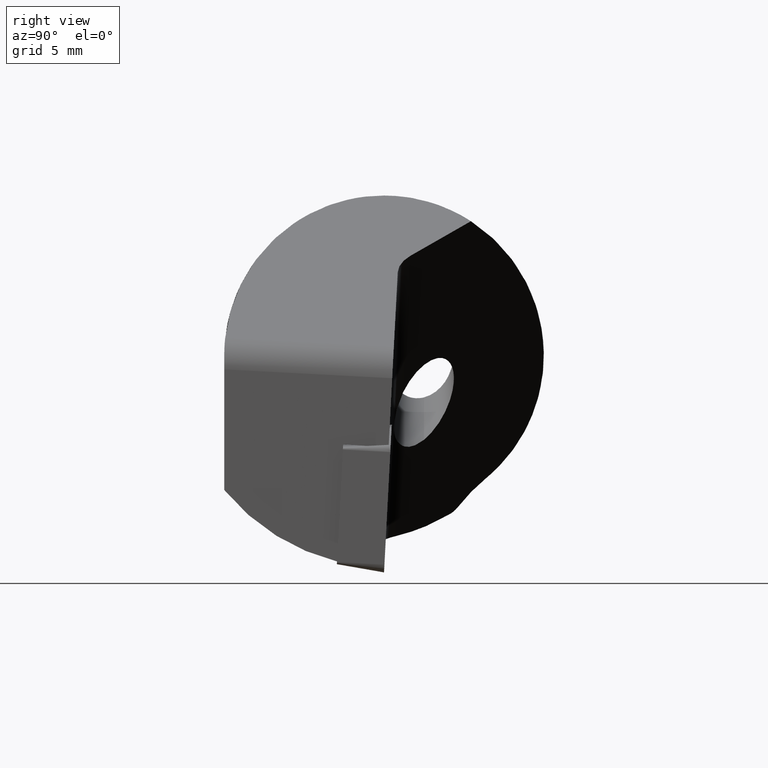
[diagram: clean part render]
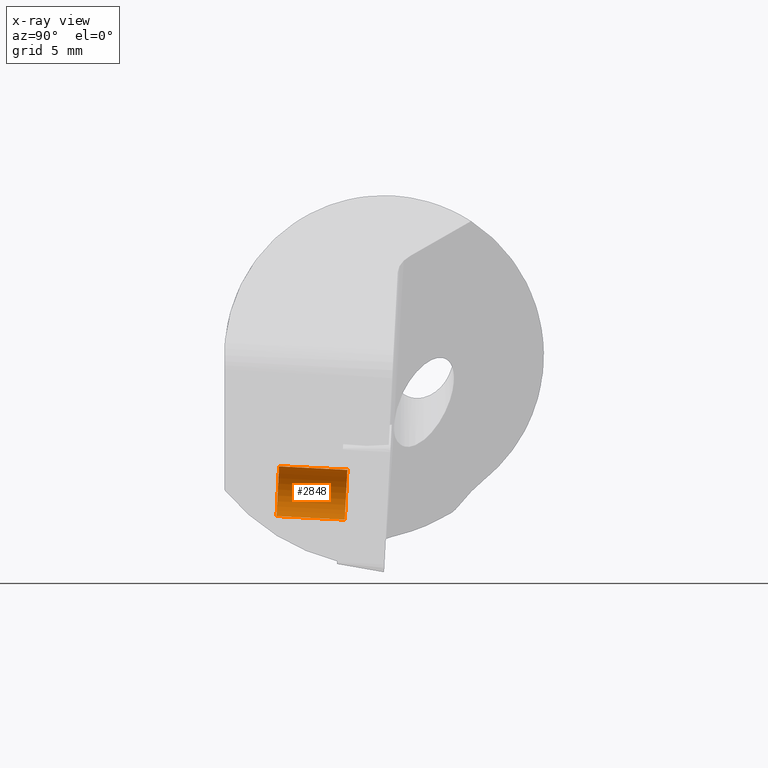
[diagram: x-ray — body ghosted, one internal face saturated and labeled with its STEP entity id]
A machine part, right view, then the same camera in x-ray: the body is ghosted and one INTERNAL B-rep face — a face not visible from any outside direction — is saturated and labeled: STEP entity #2848.
In plain terms, the highlighted cylindrical surface (edge-blend (fillet) strip) has radius 1.25 mm, axis along (-0, 0.9986, -0.0523).
Its self-contained STEP definition (entity closure, byte-faithful):
#227 = EDGE_CURVE ( 'NONE', #4707, #775, #572, .T. ) ;
#243 = DIRECTION ( 'NONE',  ( -1.000000000000000000, -6.938893903907219100E-018, -2.775557561562888900E-017 ) ) ;
#247 = CARTESIAN_POINT ( 'NONE',  ( 5.524999999999997700, -4.336808689942017700E-014, -1.734723475976807100E-014 ) ) ;
#572 = CIRCLE ( 'NONE', #1746, 1.250000000000000700 ) ;
#747 = ORIENTED_EDGE ( 'NONE', *, *, #227, .F. ) ;
#759 = VERTEX_POINT ( 'NONE', #4476 ) ;
#775 = VERTEX_POINT ( 'NONE', #3739 ) ;
#806 = EDGE_CURVE ( 'NONE', #759, #775, #1174, .T. ) ;
#942 = VECTOR ( 'NONE', #2096, 1000.000000000000000 ) ;
#1075 = EDGE_LOOP ( 'NONE', ( #1395, #2262, #1482, #747 ) ) ;
#1139 = CARTESIAN_POINT ( 'NONE',  ( -1.162574611635983000, -1.445329081783129700E-014, -1.250000000000018000 ) ) ;
#1174 = LINE ( 'NONE', #1381, #942 ) ;
#1278 = EDGE_CURVE ( 'NONE', #4465, #4707, #2584, .T. ) ;
#1381 = CARTESIAN_POINT ( 'NONE',  ( -1.162574611635983000, -1.488392742388100500E-014, 1.249999999999983300 ) ) ;
#1395 = ORIENTED_EDGE ( 'NONE', *, *, #1278, .F. ) ;
#1482 = ORIENTED_EDGE ( 'NONE', *, *, #806, .T. ) ;
#1746 = AXIS2_PLACEMENT_3D ( 'NONE', #2415, #3499, #3347 ) ;
#2096 = DIRECTION ( 'NONE',  ( -1.000000000000000000, -6.938893903907219100E-018, -2.775557561562888900E-017 ) ) ;
#2262 = ORIENTED_EDGE ( 'NONE', *, *, #3839, .T. ) ;
#2415 = CARTESIAN_POINT ( 'NONE',  ( 2.100000000000001900, 0.0000000000000000000, 0.0000000000000000000 ) ) ;
#2499 = DIRECTION ( 'NONE',  ( -1.000000000000000000, -6.938893903907219100E-018, -2.775557561562888900E-017 ) ) ;
#2584 = LINE ( 'NONE', #1139, #4389 ) ;
#2848 = ADVANCED_FACE ( 'NONE', ( #4175 ), #3073, .T. ) ;
#2912 = DIRECTION ( 'NONE',  ( 0.0000000000000000000, -1.110223024625132300E-016, 1.000000000000000000 ) ) ;
#2962 = CARTESIAN_POINT ( 'NONE',  ( 2.100000000000001900, -1.441876930293702500E-014, -1.250000000000000000 ) ) ;
#3073 = CYLINDRICAL_SURFACE ( 'NONE', #3507, 1.250000000000000700 ) ;
#3347 = DIRECTION ( 'NONE',  ( 0.0000000000000000000, -1.110223024625155900E-016, 1.000000000000000000 ) ) ;
#3379 = AXIS2_PLACEMENT_3D ( 'NONE', #247, #243, #2912 ) ;
#3393 = CIRCLE ( 'NONE', #3379, 1.250000000000000700 ) ;
#3499 = DIRECTION ( 'NONE',  ( -1.000000000000000000, -6.938893903907219100E-018, -2.775557561562888900E-017 ) ) ;
#3507 = AXIS2_PLACEMENT_3D ( 'NONE', #3871, #3712, #3974 ) ;
#3712 = DIRECTION ( 'NONE',  ( -1.000000000000000000, -6.938893903907219100E-018, -2.775557561562888900E-017 ) ) ;
#3739 = CARTESIAN_POINT ( 'NONE',  ( 2.100000000000001900, -1.387778780781445700E-016, 1.250000000000000700 ) ) ;
#3839 = EDGE_CURVE ( 'NONE', #4465, #759, #3393, .T. ) ;
#3871 = CARTESIAN_POINT ( 'NONE',  ( -1.162574611635983000, -1.474514954580286000E-014, -1.734723475976807100E-014 ) ) ;
#3935 = CARTESIAN_POINT ( 'NONE',  ( 5.524999999999997700, -4.221216240806456200E-014, -1.250000000000039300 ) ) ;
#3974 = DIRECTION ( 'NONE',  ( 0.0000000000000000000, -1.110223024625157000E-016, 1.000000000000000000 ) ) ;
#4175 = FACE_OUTER_BOUND ( 'NONE', #1075, .T. ) ;
#4389 = VECTOR ( 'NONE', #2499, 1000.000000000000000 ) ;
#4465 = VERTEX_POINT ( 'NONE', #3935 ) ;
#4476 = CARTESIAN_POINT ( 'NONE',  ( 5.524999999999997700, -4.264279901411427700E-014, 1.249999999999962900 ) ) ;
#4707 = VERTEX_POINT ( 'NONE', #2962 ) ;